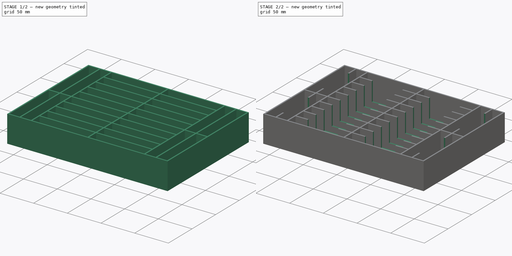
[diagram: build sequence overview — one tinted view per stage of 2, left to right]
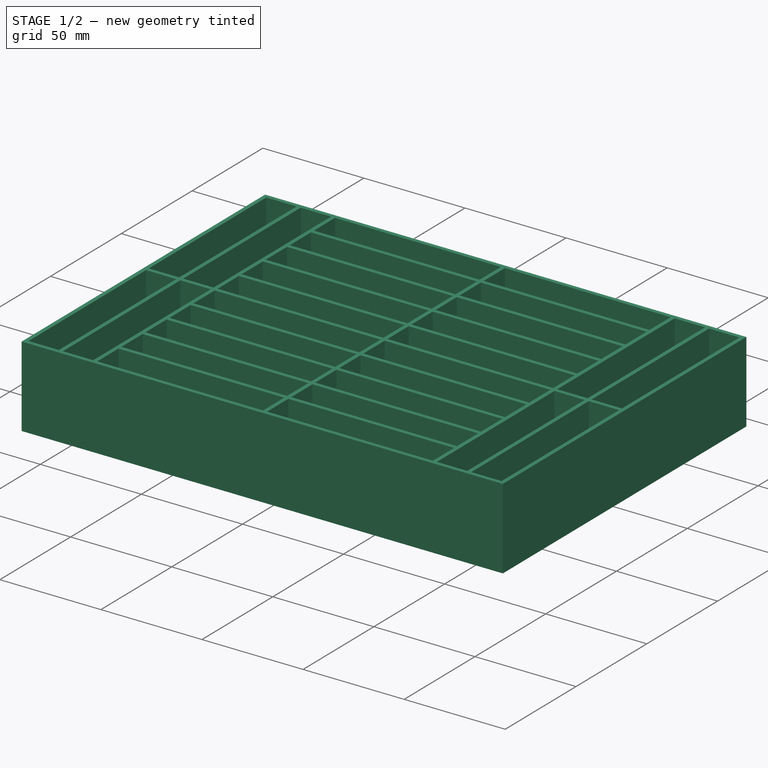
[diagram: stage 1 of 2 — iso view after this stage's code; geometry added in this stage tinted green]
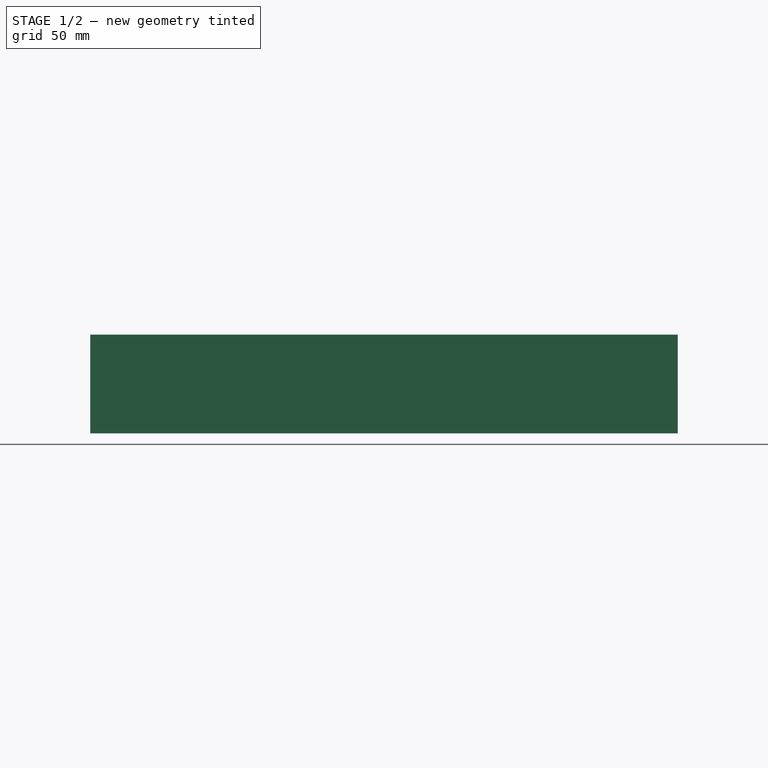
[diagram: stage 1 of 2 — front view after this stage's code; geometry added in this stage tinted green]
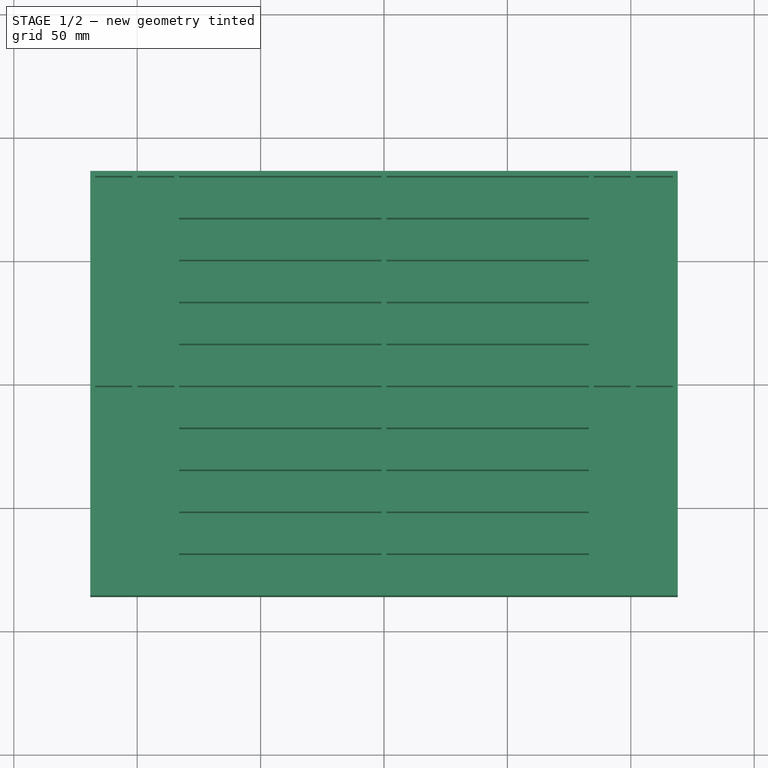
[diagram: stage 1 of 2 — top view after this stage's code; geometry added in this stage tinted green]
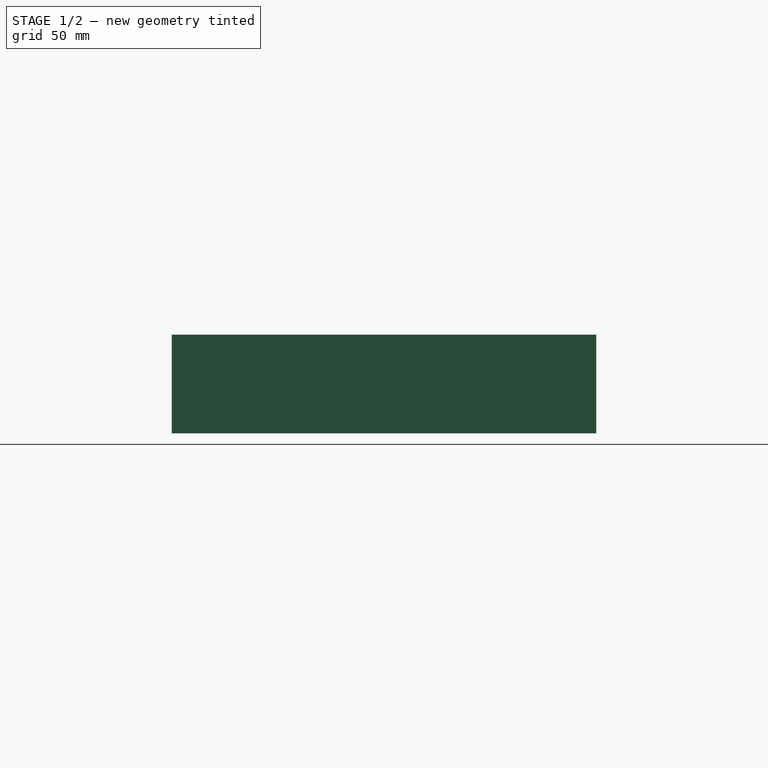
[diagram: stage 1 of 2 — right view after this stage's code; geometry added in this stage tinted green]
FCSTD DOCUMENT  (FreeCAD 1.0R)
Label: Nouveau
License: All rights reserved
LicenseURL: http://en.wikipedia.org/wiki/All_rights_reserved
objects: Sketcher::SketchObject×5, PartDesign::Pocket×3, PartDesign::Pad×1, PartDesign::Body×1
note: 23 computed .brp shape members not serialized (recipe doc carries the construction recipe); baked Part::Feature solids carry a one-line shape summary decoded from their .brp

FEATURE [Sketcher::SketchObject] Sketch
  ArcFitTolerance = 1e-06
  AttachmentSupport = -> [XY_Plane]
  FullyConstrained = true
  MakeInternals = false
  MapMode = 5
  sketch-geometry (4):
    g0: LineSegment StartX=-119 StartY=86 StartZ=0 EndX=-119 EndY=-86 EndZ=0
    g1: LineSegment StartX=-119 StartY=-86 StartZ=0 EndX=119 EndY=-86 EndZ=0
    g2: LineSegment StartX=119 StartY=-86 StartZ=0 EndX=119 EndY=86 EndZ=0
    g3: LineSegment StartX=119 StartY=86 StartZ=0 EndX=-119 EndY=86 EndZ=0
  constraints (11):
    c: Coincident(g0,g1)
    c: Coincident(g1,g2)
    c: Coincident(g2,g3)
    c: Coincident(g3,g0)
    c: Vertical(g0)
    c: Vertical(g2)
    c: Horizontal(g1)
    c: Horizontal(g3)
    c: Symmetric(g0,g1,g-1)
    c: DistanceX(g3,g3) = 238
    c: DistanceY(g0,g0) = 172
FEATURE [PartDesign::Pad] Pad
  Direction = (0,0,1)
  Length = 40
  Length2 = 10
  Profile = -> Sketch
  ReferenceAxis = -> Sketch [N_Axis]
  Suppressed = false
  Type = 0
FEATURE [Sketcher::SketchObject] Sketch001
  ArcFitTolerance = 1e-06
  AttachmentSupport = -> [Pad]
  FullyConstrained = true
  MakeInternals = false
  MapMode = 5
  Placement = pos=(0,0,40) rot=(0,0,1;0rad)
  sketch-geometry (112):
    g0: LineSegment StartX=-1 StartY=1 StartZ=0 EndX=-1 EndY=16 EndZ=0
    g1: LineSegment StartX=-1 StartY=16 StartZ=0 EndX=-83 EndY=16 EndZ=0
    g2: LineSegment StartX=-83 StartY=16 StartZ=0 EndX=-83 EndY=1 EndZ=0
    g3: LineSegment StartX=-83 StartY=1 StartZ=0 EndX=-1 EndY=1 EndZ=0
    g4: LineSegment StartX=1 StartY=1 StartZ=0 EndX=83 EndY=1 EndZ=0
    g5: LineSegment StartX=83 StartY=1 StartZ=0 EndX=83 EndY=16 EndZ=0
    g6: LineSegment StartX=83 StartY=16 StartZ=0 EndX=1 EndY=16 EndZ=0
    g7: LineSegment StartX=1 StartY=16 StartZ=0 EndX=1 EndY=1 EndZ=0
    g8: LineSegment StartX=1 StartY=-1 StartZ=0 EndX=1 EndY=-16 EndZ=0
    g9: LineSegment StartX=1 StartY=-16 StartZ=0 EndX=83 EndY=-16 EndZ=0
    g10: LineSegment StartX=83 StartY=-16 StartZ=0 EndX=83 EndY=-1 EndZ=0
    g11: LineSegment StartX=83 StartY=-1 StartZ=0 EndX=1 EndY=-1 EndZ=0
    g12: LineSegment StartX=-1 StartY=-1 StartZ=0 EndX=-83 EndY=-1 EndZ=0
    g13: LineSegment StartX=-83 StartY=-1 StartZ=0 EndX=-83 EndY=-16 EndZ=0
    g14: LineSegment StartX=-83 StartY=-16 StartZ=0 EndX=-1 EndY=-16 EndZ=0
    g15: LineSegment StartX=-1 StartY=-16 StartZ=0 EndX=-1 EndY=-1 EndZ=0
    g16: LineSegment StartX=1 StartY=18 StartZ=0 EndX=83 EndY=18 EndZ=0
    g17: LineSegment StartX=83 StartY=18 StartZ=0 EndX=83 EndY=33 EndZ=0
    g18: LineSegment StartX=83 StartY=33 StartZ=0 EndX=1 EndY=33 EndZ=0
    g19: LineSegment StartX=1 StartY=33 StartZ=0 EndX=1 EndY=18 EndZ=0
    g20: LineSegment StartX=-1 StartY=18 StartZ=0 EndX=-1 EndY=33 EndZ=0
    g21: LineSegment StartX=-1 StartY=33 StartZ=0 EndX=-83 EndY=33 EndZ=0
    g22: LineSegment StartX=-83 StartY=33 StartZ=0 EndX=-83 EndY=18 EndZ=0
    g23: LineSegment StartX=-83 StartY=18 StartZ=0 EndX=-1 EndY=18 EndZ=0
    g24: LineSegment StartX=1 StartY=-18 StartZ=0 EndX=1 EndY=-33 EndZ=0
    g25: LineSegment StartX=1 StartY=-33 StartZ=0 EndX=83 EndY=-33 EndZ=0
    g26: LineSegment StartX=83 StartY=-33 StartZ=0 EndX=83 EndY=-18 EndZ=0
    g27: LineSegment StartX=83 StartY=-18 StartZ=0 EndX=1 EndY=-18 EndZ=0
    g28: LineSegment StartX=1 StartY=-35 StartZ=0 EndX=1 EndY=-50 EndZ=0
    g29: LineSegment StartX=1 StartY=-50 StartZ=0 EndX=83 EndY=-50 EndZ=0
    g30: LineSegment StartX=83 StartY=-50 StartZ=0 EndX=83 EndY=-35 EndZ=0
    g31: LineSegment StartX=83 StartY=-35 StartZ=0 EndX=1 EndY=-35 EndZ=0
    g32: LineSegment StartX=1 StartY=-52 StartZ=0 EndX=1 EndY=-67 EndZ=0
    g33: LineSegment StartX=1 StartY=-67 StartZ=0 EndX=83 EndY=-67 EndZ=0
    g34: LineSegment StartX=83 StartY=-67 StartZ=0 EndX=83 EndY=-52 EndZ=0
    g35: LineSegment StartX=83 StartY=-52 StartZ=0 EndX=1 EndY=-52 EndZ=0
    g36: LineSegment StartX=-1 StartY=-18 StartZ=0 EndX=-83 EndY=-18 EndZ=0
    g37: LineSegment StartX=-83 StartY=-18 StartZ=0 EndX=-83 EndY=-33 EndZ=0
    g38: LineSegment StartX=-83 StartY=-33 StartZ=0 EndX=-1 EndY=-33 EndZ=0
    g39: LineSegment StartX=-1 StartY=-33 StartZ=0 EndX=-1 EndY=-18 EndZ=0
    g40: LineSegment StartX=-1 StartY=-35 StartZ=0 EndX=-83 EndY=-35 EndZ=0
    g41: LineSegment StartX=-83 StartY=-35 StartZ=0 EndX=-83 EndY=-50 EndZ=0
    g42: LineSegment StartX=-83 StartY=-50 StartZ=0 EndX=-1 EndY=-50 EndZ=0
    g43: LineSegment StartX=-1 StartY=-50 StartZ=0 EndX=-1 EndY=-35 EndZ=0
    g44: LineSegment StartX=-1 StartY=-52 StartZ=0 EndX=-83 EndY=-52 EndZ=0
    g45: LineSegment StartX=-83 StartY=-52 StartZ=0 EndX=-83 EndY=-67 EndZ=0
    g46: LineSegment StartX=-83 StartY=-67 StartZ=0 EndX=-1 EndY=-67 EndZ=0
    g47: LineSegment StartX=-1 StartY=-67 StartZ=0 EndX=-1 EndY=-52 EndZ=0
    g48: LineSegment StartX=1 StartY=35 StartZ=0 EndX=83 EndY=35 EndZ=0
    g49: LineSegment StartX=83 StartY=35 StartZ=0 EndX=83 EndY=50 EndZ=0
    g50: LineSegment StartX=83 StartY=50 StartZ=0 EndX=1 EndY=50 EndZ=0
    g51: LineSegment StartX=1 StartY=50 StartZ=0 EndX=1 EndY=35 EndZ=0
    g52: LineSegment StartX=-1 StartY=35 StartZ=0 EndX=-1 EndY=50 EndZ=0
    g53: LineSegment StartX=-1 StartY=50 StartZ=0 EndX=-83 EndY=50 EndZ=0
    g54: LineSegment StartX=-83 StartY=50 StartZ=0 EndX=-83 EndY=35 EndZ=0
    g55: LineSegment StartX=-83 StartY=35 StartZ=0 EndX=-1 EndY=35 EndZ=0
    g56: LineSegment StartX=1 StartY=52 StartZ=0 EndX=83 EndY=52 EndZ=0
    g57: LineSegment StartX=83 StartY=52 StartZ=0 EndX=83 EndY=67 EndZ=0
    g58: LineSegment StartX=83 StartY=67 StartZ=0 EndX=1 EndY=67 EndZ=0
    g59: LineSegment StartX=1 StartY=67 StartZ=0 EndX=1 EndY=52 EndZ=0
    g60: LineSegment StartX=-1 StartY=52 StartZ=0 EndX=-1 EndY=67 EndZ=0
    g61: LineSegment StartX=-1 StartY=67 StartZ=0 EndX=-83 EndY=67 EndZ=0
    g62: LineSegment StartX=-83 StartY=67 StartZ=0 EndX=-83 EndY=52 EndZ=0
    g63: LineSegment StartX=-83 StartY=52 StartZ=0 EndX=-1 EndY=52 EndZ=0
    g64: LineSegment StartX=85 StartY=-1 StartZ=0 EndX=85 EndY=-84 EndZ=0
    g65: LineSegment StartX=85 StartY=-84 StartZ=0 EndX=100 EndY=-84 EndZ=0
    g66: LineSegment StartX=100 StartY=-84 StartZ=0 EndX=100 EndY=-1 EndZ=0
    g67: LineSegment StartX=100 StartY=-1 StartZ=0 EndX=85 EndY=-1 EndZ=0
    g68: LineSegment StartX=1 StartY=-69 StartZ=0 EndX=1 EndY=-84 EndZ=0
    g69: LineSegment StartX=1 StartY=-84 StartZ=0 EndX=83 EndY=-84 EndZ=0
    g70: LineSegment StartX=83 StartY=-84 StartZ=0 EndX=83 EndY=-69 EndZ=0
    g71: LineSegment StartX=83 StartY=-69 StartZ=0 EndX=1 EndY=-69 EndZ=0
    g72: LineSegment StartX=-83 StartY=-69 StartZ=0 EndX=-83 EndY=-84 EndZ=0
    g73: LineSegment StartX=-83 StartY=-84 StartZ=0 EndX=-1 EndY=-84 EndZ=0
    g74: LineSegment StartX=-1 StartY=-84 StartZ=0 EndX=-1 EndY=-69 EndZ=0
    g75: LineSegment StartX=-1 StartY=-69 StartZ=0 EndX=-83 EndY=-69 EndZ=0
    g76: LineSegment StartX=1 StartY=69 StartZ=0 EndX=83 EndY=69 EndZ=0
    g77: LineSegment StartX=83 StartY=69 StartZ=0 EndX=83 EndY=84 EndZ=0
    g78: LineSegment StartX=83 StartY=84 StartZ=0 EndX=1 EndY=84 EndZ=0
    g79: LineSegment StartX=1 StartY=84 StartZ=0 EndX=1 EndY=69 EndZ=0
    g80: LineSegment StartX=-1 StartY=69 StartZ=0 EndX=-1 EndY=84 EndZ=0
    g81: LineSegment StartX=-1 StartY=84 StartZ=0 EndX=-83 EndY=84 EndZ=0
    g82: LineSegment StartX=-83 StartY=84 StartZ=0 EndX=-83 EndY=69 EndZ=0
    g83: LineSegment StartX=-83 StartY=69 StartZ=0 EndX=-1 EndY=69 EndZ=0
    g84: LineSegment StartX=100 StartY=1 StartZ=0 EndX=100 EndY=84 EndZ=0
    g85: LineSegment StartX=100 StartY=84 StartZ=0 EndX=85 EndY=84 EndZ=0
    g86: LineSegment StartX=85 StartY=84 StartZ=0 EndX=85 EndY=1 EndZ=0
    g87: LineSegment StartX=85 StartY=1 StartZ=0 EndX=100 EndY=1 EndZ=0
    g88: LineSegment StartX=-85 StartY=1 StartZ=0 EndX=-85 EndY=84 EndZ=0
    g89: LineSegment StartX=-85 StartY=84 StartZ=0 EndX=-100 EndY=84 EndZ=0
    g90: LineSegment StartX=-100 StartY=84 StartZ=0 EndX=-100 EndY=1 EndZ=0
    g91: LineSegment StartX=-100 StartY=1 StartZ=0 EndX=-85 EndY=1 EndZ=0
    g92: LineSegment StartX=-100 StartY=-84 StartZ=0 EndX=-85 EndY=-84 EndZ=0
    g93: LineSegment StartX=-85 StartY=-84 StartZ=0 EndX=-85 EndY=-1 EndZ=0
    g94: LineSegment StartX=-85 StartY=-1 StartZ=0 EndX=-100 EndY=-1 EndZ=0
    g95: LineSegment StartX=-100 StartY=-1 StartZ=0 EndX=-100 EndY=-84 EndZ=0
    g96: LineSegment StartX=102 StartY=84 StartZ=0 EndX=102 EndY=1 EndZ=0
    g97: LineSegment StartX=102 StartY=1 StartZ=0 EndX=117 EndY=1 EndZ=0
    g98: LineSegment StartX=117 StartY=1 StartZ=0 EndX=117 EndY=84 EndZ=0
    g99: LineSegment StartX=117 StartY=84 StartZ=0 EndX=102 EndY=84 EndZ=0
    g100: LineSegment StartX=102 StartY=-1 StartZ=0 EndX=102 EndY=-84 EndZ=0
    g101: LineSegment StartX=102 StartY=-84 StartZ=0 EndX=117 EndY=-84 EndZ=0
    g102: LineSegment StartX=117 StartY=-84 StartZ=0 EndX=117 EndY=-1 EndZ=0
    g103: LineSegment StartX=117 StartY=-1 StartZ=0 EndX=102 EndY=-1 EndZ=0
    g104: LineSegment StartX=-102 StartY=84 StartZ=0 EndX=-117 EndY=84 EndZ=0
    g105: LineSegment StartX=-117 StartY=84 StartZ=0 EndX=-117 EndY=1 EndZ=0
    g106: LineSegment StartX=-117 StartY=1 StartZ=0 EndX=-102 EndY=1 EndZ=0
    g107: LineSegment StartX=-102 StartY=1 StartZ=0 EndX=-102 EndY=84 EndZ=0
    g108: LineSegment StartX=-117 StartY=-1 StartZ=0 EndX=-117 EndY=-84 EndZ=0
    g109: LineSegment StartX=-117 StartY=-84 StartZ=0 EndX=-102 EndY=-84 EndZ=0
    g110: LineSegment StartX=-102 StartY=-84 StartZ=0 EndX=-102 EndY=-1 EndZ=0
    g111: LineSegment StartX=-102 StartY=-1 StartZ=0 EndX=-117 EndY=-1 EndZ=0
  constraints (331):
    c: Coincident(g0,g1)
    c: Coincident(g1,g2)
    c: Coincident(g2,g3)
    c: Coincident(g3,g0)
    c: Vertical(g0)
    c: Vertical(g2)
    c: Horizontal(g1)
    c: Horizontal(g3)
    c: DistanceX(g0,g-1) = 1
    c: DistanceY(g-1,g0) = 1
    c: DistanceY(g0,g0) = 15
    c: DistanceX(g1,g1) = 82
    c: Coincident(g4,g5)
    c: Coincident(g5,g6)
    c: Coincident(g6,g7)
    c: Coincident(g7,g4)
    c: Horizontal(g4)
    c: Horizontal(g6)
    c: Vertical(g5)
    c: Vertical(g7)
    c: Symmetric(g4,g0,g-2)
    c: DistanceY(g7,g7) = 15
    c: DistanceX(g6,g6) = 82
    c: Coincident(g8,g9)
    c: Coincident(g9,g10)
    c: Coincident(g10,g11)
    c: Coincident(g11,g8)
    c: Vertical(g8)
    c: Vertical(g10)
    c: Horizontal(g9)
    c: Horizontal(g11)
    c: Coincident(g12,g13)
    c: Coincident(g13,g14)
    c: Coincident(g14,g15)
    c: Coincident(g15,g12)
    c: Horizontal(g12)
    c: Horizontal(g14)
    c: Vertical(g13)
    c: Vertical(g15)
    c: Symmetric(g8,g0,g-1)
    c: Symmetric(g12,g4,g-1)
    c: DistanceY(g8,g8) = 15
    c: DistanceY(g15,g15) = 15
    c: DistanceX(g14,g14) = 82
    c: DistanceX(g9,g9) = 82
    c: Coincident(g16,g17)
    c: Coincident(g17,g18)
    c: Coincident(g18,g19)
    c: Coincident(g19,g16)
    c: Horizontal(g16)
    c: Horizontal(g18)
    c: Vertical(g17)
    c: Vertical(g19)
    c: Coincident(g20,g21)
    c: Coincident(g21,g22)
    c: Coincident(g22,g23)
    c: Coincident(g23,g20)
    c: Vertical(g20)
    c: Vertical(g22)
    c: Horizontal(g21)
    c: Horizontal(g23)
    c: Vertical(g16,g6)
    c: Vertical(g20,g0)
    c: Horizontal(g18,g20)
    c: Vertical(g16,g5)
    c: Vertical(g22,g1)
    c: DistanceY(g19,g19) = 15
    c: Equal(g19,g20)
    c: DistanceY(g0,g20) = 2
    c: Coincident(g24,g25)
    c: Coincident(g25,g26)
    c: Coincident(g26,g27)
    c: Coincident(g27,g24)
    c: Vertical(g24)
    c: Vertical(g26)
    c: Horizontal(g25)
    c: Horizontal(g27)
    c: Coincident(g28,g29)
    c: Coincident(g29,g30)
    c: Coincident(g30,g31)
    c: Coincident(g31,g28)
    c: Vertical(g28)
    c: Vertical(g30)
    c: Horizontal(g29)
    c: Horizontal(g31)
    c: Coincident(g32,g33)
    c: Coincident(g33,g34)
    c: Coincident(g34,g35)
    c: Coincident(g35,g32)
    c: Vertical(g32)
    c: Vertical(g34)
    c: Horizontal(g33)
    c: Horizontal(g35)
    c: Coincident(g36,g37)
    c: Coincident(g37,g38)
    c: Coincident(g38,g39)
    c: Coincident(g39,g36)
    c: Horizontal(g36)
    c: Horizontal(g38)
    c: Vertical(g37)
    c: Vertical(g39)
    c: Coincident(g40,g41)
    c: Coincident(g41,g42)
    c: Coincident(g42,g43)
    c: Coincident(g43,g40)
    c: Horizontal(g40)
    c: Horizontal(g42)
    c: Vertical(g41)
    c: Vertical(g43)
    c: Coincident(g44,g45)
    c: Coincident(g45,g46)
    c: Coincident(g46,g47)
    c: Coincident(g47,g44)
    c: Horizontal(g44)
    c: Horizontal(g46)
    c: Vertical(g45)
    c: Vertical(g47)
    c: Equal(g39,g24)
    c: Equal(g24,g28)
    c: Equal(g28,g43)
    c: Equal(g43,g47)
    c: Equal(g47,g32)
    c: Equal(g27,g36)
    c: Equal(g36,g40)
    c: Equal(g40,g31)
    c: Equal(g31,g35)
    c: Equal(g35,g44)
    c: Symmetric(g24,g36,g-2)
    c: Symmetric(g28,g40,g-2)
    c: Vertical(g36,g14)
    c: Vertical(g28,g24)
    c: Vertical(g44,g42)
    c: Horizontal(g44,g32)
    c: Vertical(g32,g28)
    c: DistanceY(g32,g28) = 2
    c: DistanceY(g28,g24) = 2
    c: DistanceY(g24,g24) = 15
    c: DistanceY(g24,g8) = 2
    c: Vertical(g26,g9)
    c: Coincident(g48,g49)
    c: Coincident(g49,g50)
    c: Coincident(g50,g51)
    c: Coincident(g51,g48)
    c: Horizontal(g48)
    c: Horizontal(g50)
    c: Vertical(g49)
    c: Vertical(g51)
    c: Coincident(g52,g53)
    c: Coincident(g53,g54)
    c: Coincident(g54,g55)
    c: Coincident(g55,g52)
    c: Vertical(g52)
    c: Vertical(g54)
    c: Horizontal(g53)
    c: Horizontal(g55)
    c: Coincident(g56,g57)
    c: Coincident(g57,g58)
    c: Coincident(g58,g59)
    c: Coincident(g59,g56)
    c: Horizontal(g56)
    c: Horizontal(g58)
    c: Vertical(g57)
    c: Vertical(g59)
    c: Coincident(g60,g61)
    c: Coincident(g61,g62)
    c: Coincident(g62,g63)
    c: Coincident(g63,g60)
    c: Vertical(g60)
    c: Vertical(g62)
    c: Horizontal(g61)
    c: Horizontal(g63)
    c: Vertical(g60,g52)
    c: Vertical(g56,g50)
    c: Horizontal(g56,g60)
    c: DistanceY(g60,g60) = 15
    c: Equal(g60,g59)
    c: Equal(g59,g51)
    c: Equal(g51,g52)
    c: Equal(g56,g50)
    c: Equal(g50,g53)
    c: Equal(g53,g63)
    c: Vertical(g48,g18)
    c: Vertical(g52,g20)
    c: Horizontal(g50,g52)
    c: Vertical(g48,g17)
    c: DistanceY(g20,g52) = 2
    c: DistanceY(g52,g60) = 2
    c: Coincident(g64,g65)
    c: Coincident(g65,g66)
    c: Coincident(g66,g67)
    c: Coincident(g67,g64)
    c: Vertical(g64)
    c: Vertical(g66)
    c: Horizontal(g65)
    c: Horizontal(g67)
    c: DistanceX(g67,g67) = 15
    c: Coincident(g68,g69)
    c: Coincident(g69,g70)
    c: Coincident(g70,g71)
    c: Coincident(g71,g68)
    c: Vertical(g68)
    c: Vertical(g70)
    c: Horizontal(g69)
    c: Horizontal(g71)
    c: Coincident(g72,g73)
    c: Coincident(g73,g74)
    c: Coincident(g74,g75)
    c: Coincident(g75,g72)
    c: Vertical(g72)
    c: Vertical(g74)
    c: Horizontal(g73)
    c: Horizontal(g75)
    c: Coincident(g76,g77)
    c: Coincident(g77,g78)
    c: Coincident(g78,g79)
    c: Coincident(g79,g76)
    c: Horizontal(g76)
    c: Horizontal(g78)
    c: Vertical(g77)
    c: Vertical(g79)
    c: Coincident(g80,g81)
    c: Coincident(g81,g82)
    c: Coincident(g82,g83)
    c: Coincident(g83,g80)
    c: Vertical(g80)
    c: Vertical(g82)
    c: Horizontal(g81)
    c: Horizontal(g83)
    c: Vertical(g76,g58)
    c: Vertical(g80,g60)
    c: Horizontal(g76,g80)
    c: Equal(g80,g79)
    c: Equal(g79,g59)
    c: Equal(g58,g76)
    c: Equal(g76,g83)
    c: DistanceY(g60,g80) = 2
    c: Horizontal(g68,g74)
    c: Vertical(g74,g46)
    c: Vertical(g32,g68)
    c: Equal(g74,g68)
    c: Equal(g68,g32)
    c: Equal(g33,g71)
    c: Equal(g71,g75)
    c: DistanceY(g74,g46) = 2
    c: Horizontal(g64,g10)
    c: DistanceX(g10,g64) = 2
    c: Horizontal(g64,g69)
    c: Coincident(g84,g85)
    c: Coincident(g85,g86)
    c: Coincident(g86,g87)
    c: Coincident(g87,g84)
    c: Vertical(g84)
    c: Vertical(g86)
    c: Horizontal(g85)
    c: Horizontal(g87)
    c: Coincident(g88,g89)
    c: Coincident(g89,g90)
    c: Coincident(g90,g91)
    c: Coincident(g91,g88)
    c: Vertical(g88)
    c: Vertical(g90)
    c: Horizontal(g89)
    c: Horizontal(g91)
    c: Coincident(g92,g93)
    c: Coincident(g93,g94)
    c: Coincident(g94,g95)
    c: Coincident(g95,g92)
    c: Horizontal(g92)
    c: Horizontal(g94)
    c: Vertical(g93)
    c: Vertical(g95)
    c: Horizontal(g86,g4)
    c: Vertical(g86,g64)
    c: Horizontal(g85,g77)
    c: Vertical(g84,g66)
    c: Horizontal(g2,g88)
    c: Vertical(g93,g88)
    c: Horizontal(g93,g12)
    c: DistanceX(g88,g2) = 2
    c: Equal(g94,g91)
    c: Equal(g91,g2)
    c: Horizontal(g81,g88)
    c: Horizontal(g92,g72)
    c: Coincident(g96,g97)
    c: Coincident(g97,g98)
    c: Coincident(g98,g99)
    c: Coincident(g99,g96)
    c: Vertical(g96)
    c: Vertical(g98)
    c: Horizontal(g97)
    c: Horizontal(g99)
    c: Coincident(g100,g101)
    c: Coincident(g101,g102)
    c: Coincident(g102,g103)
    c: Coincident(g103,g100)
    c: Vertical(g100)
    c: Vertical(g102)
    c: Horizontal(g101)
    c: Horizontal(g103)
    c: Coincident(g104,g105)
    c: Coincident(g105,g106)
    c: Coincident(g106,g107)
    c: Coincident(g107,g104)
    c: Horizontal(g104)
    c: Horizontal(g106)
    c: Vertical(g105)
    c: Vertical(g107)
    c: Coincident(g108,g109)
    c: Coincident(g109,g110)
    c: Coincident(g110,g111)
    c: Coincident(g111,g108)
    c: Vertical(g108)
    c: Vertical(g110)
    c: Horizontal(g109)
    c: Horizontal(g111)
    c: Horizontal(g96,g84)
    c: Horizontal(g100,g66)
    c: Vertical(g100,g96)
    c: Equal(g97,g103)
    c: DistanceX(g84,g96) = 2
    c: Horizontal(g96,g84)
    c: Horizontal(g100,g65)
    c: Horizontal(g109,g92)
    c: Equal(g111,g91)
    c: Equal(g91,g106)
    c: Horizontal(g110,g94)
    c: Vertical(g110,g106)
    c: Horizontal(g106,g90)
    c: DistanceX(g106,g90) = 2
    c: Horizontal(g104,g89)
    c: Equal(g97,g87)
FEATURE [PartDesign::Pocket] Pocket
  BaseFeature = -> Pad
  Direction = (0,0,-1)
  Length = 0
  Length2 = 5
  Offset = -2
  Profile = -> Sketch001
  ReferenceAxis = -> Sketch001 [N_Axis]
  Suppressed = false
  Type = 3
  UpToFace = -> Pad [Face5]
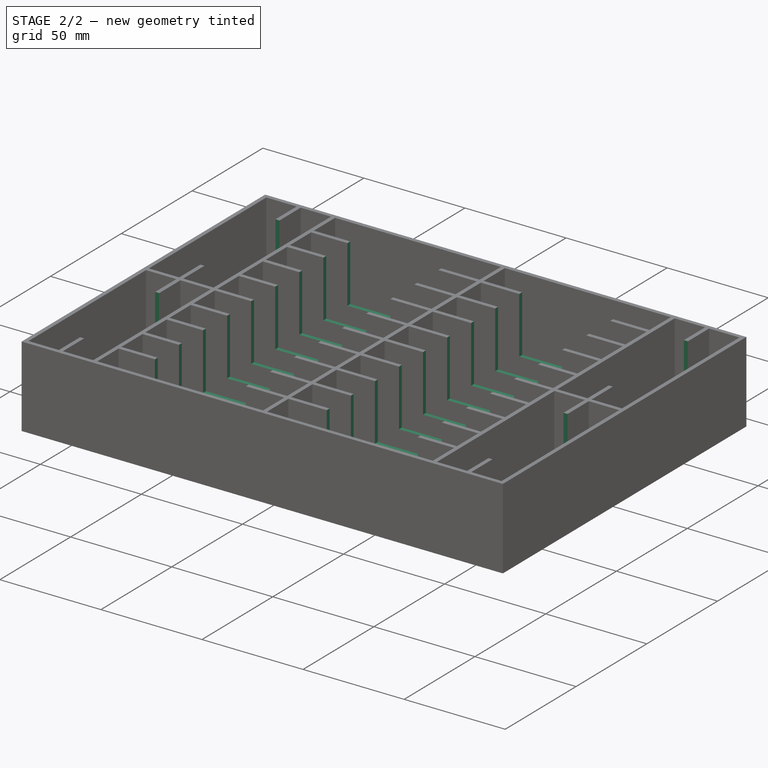
[diagram: stage 2 of 2 — iso view after this stage's code; geometry added in this stage tinted green]
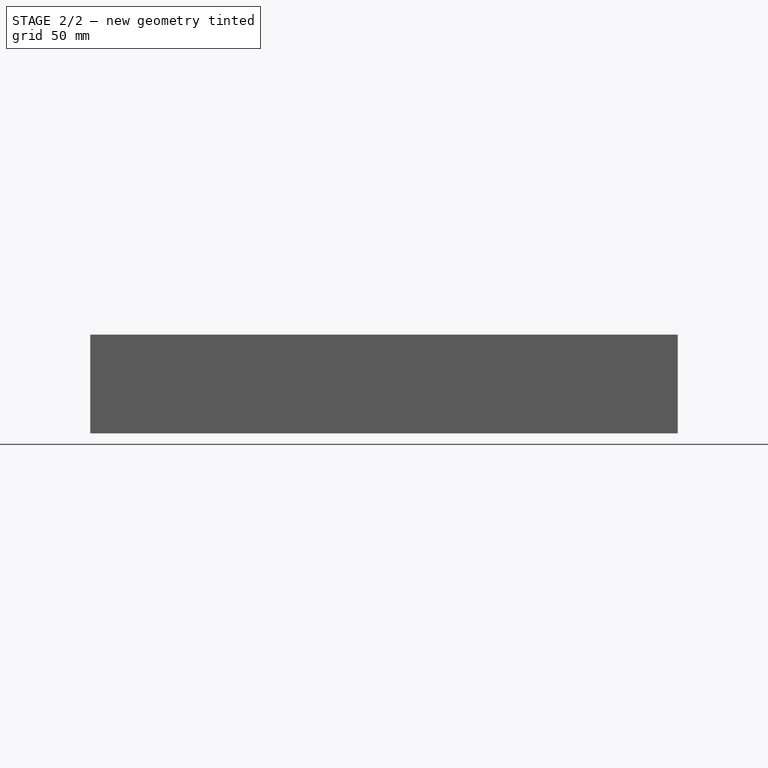
[diagram: stage 2 of 2 — front view after this stage's code; geometry added in this stage tinted green]
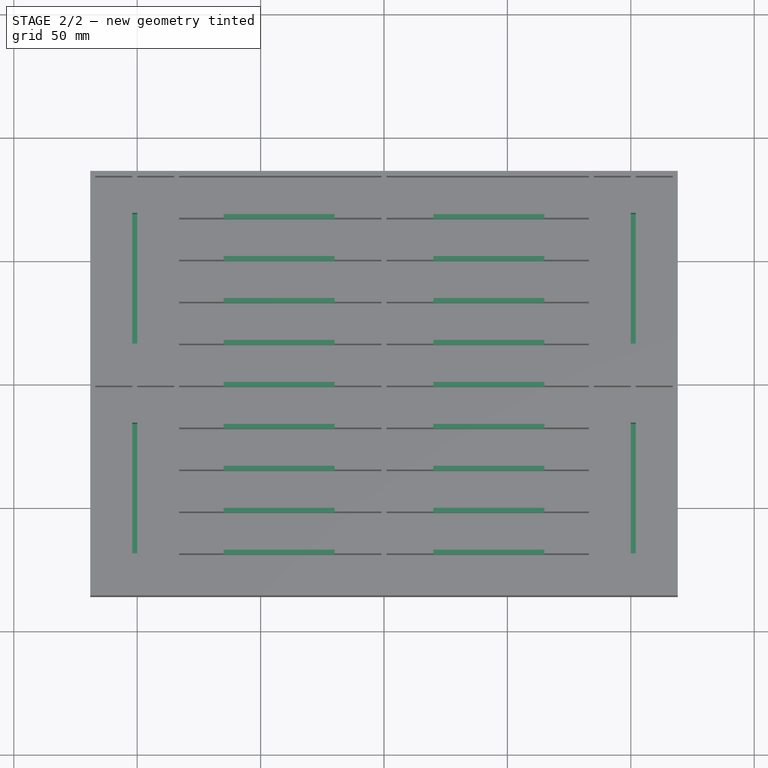
[diagram: stage 2 of 2 — top view after this stage's code; geometry added in this stage tinted green]
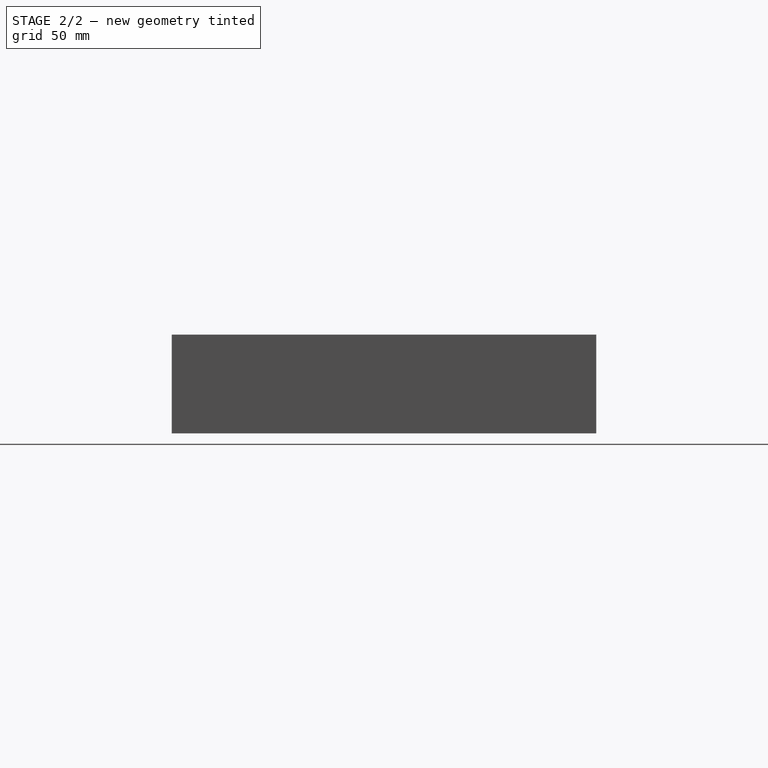
[diagram: stage 2 of 2 — right view after this stage's code; geometry added in this stage tinted green]
FEATURE [Sketcher::SketchObject] Sketch002
  ArcFitTolerance = 1e-06
  AttachmentSupport = -> [Pocket]
  ExternalGeometry = -> [Pocket]
  FullyConstrained = true
  MakeInternals = false
  MapMode = 5
  Placement = pos=(0,0,40) rot=(0,0,1;0rad)
  sketch-geometry (11):
    g0: LineSegment StartX=-65 StartY=75 StartZ=0 EndX=-65 EndY=-75 EndZ=0
    g1: LineSegment StartX=-65 StartY=-75 StartZ=0 EndX=-20 EndY=-75 EndZ=0
    g2: LineSegment StartX=-20 StartY=-75 StartZ=0 EndX=-20 EndY=75 EndZ=0
    g3: LineSegment StartX=-20 StartY=75 StartZ=0 EndX=-65 EndY=75 EndZ=0
    g4: LineSegment StartX=20 StartY=-75 StartZ=0 EndX=65 EndY=-75 EndZ=0
    g5: LineSegment StartX=65 StartY=-75 StartZ=0 EndX=65 EndY=75 EndZ=0
    g6: LineSegment StartX=65 StartY=75 StartZ=0 EndX=20 EndY=75 EndZ=0
    g7: LineSegment StartX=20 StartY=75 StartZ=0 EndX=20 EndY=-75 EndZ=0
    g8: LineSegment [constr] StartX=1 StartY=1 StartZ=0 EndX=83 EndY=-1 EndZ=0
    g9: LineSegment [constr] StartX=83 StartY=1 StartZ=0 EndX=1 EndY=-1 EndZ=0
    g10: GeomPoint [constr] X=42 Y=3.9e-15 Z=0
  constraints (29):
    c: Coincident(g0,g1)
    c: Coincident(g1,g2)
    c: Coincident(g2,g3)
    c: Coincident(g3,g0)
    c: Vertical(g0)
    c: Vertical(g2)
    c: Horizontal(g1)
    c: Horizontal(g3)
    c: Coincident(g4,g5)
    c: Coincident(g5,g6)
    c: Coincident(g6,g7)
    c: Coincident(g7,g4)
    c: Horizontal(g4)
    c: Horizontal(g6)
    c: Vertical(g5)
    c: Vertical(g7)
    c: DistanceX(g3,g3) = 45
    c: Horizontal(g6,g2)
    c: Horizontal(g4,g1)
    c: Symmetric(g4,g2,g-1)
    c: Equal(g3,g6)
    c: Coincident(g8,g-5)
    c: Coincident(g8,g-6)
    c: Coincident(g9,g-5)
    c: Coincident(g9,g-6)
    c: PointOnObject(g10,g8)
    c: PointOnObject(g10,g9)
    c: DistanceX(g1,g4) = 40
    c: DistanceY(g0,g0) = 150
FEATURE [PartDesign::Pocket] Pocket001
  BaseFeature = -> Pocket
  Direction = (0,0,-1)
  Length = 0
  Length2 = 5
  Offset = 10
  Profile = -> Sketch002
  ReferenceAxis = -> Sketch002 [N_Axis]
  Suppressed = false
  Type = 3
  UpToFace = -> Pocket [Face138]
FEATURE [Sketcher::SketchObject] Sketch003
  ArcFitTolerance = 1e-06
  AttachmentSupport = -> [Pocket001]
  ExternalGeometry = -> [Pocket001]
  FullyConstrained = true
  MakeInternals = false
  MapMode = 5
  Placement = pos=(119,0,0) rot=(0.57735,0.57735,0.57735;2.0944rad)
FEATURE [Sketcher::SketchObject] Sketch004
  ArcFitTolerance = 1e-06
  AttachmentSupport = -> [Pocket001]
  ExternalGeometry = -> [Pocket001]
  FullyConstrained = true
  MakeInternals = false
  MapMode = 5
  Placement = pos=(0,0,40) rot=(0,0,1;0rad)
  sketch-geometry (16):
    g0: LineSegment StartX=93 StartY=69 StartZ=0 EndX=93 EndY=16 EndZ=0
    g1: LineSegment StartX=93 StartY=16 StartZ=0 EndX=113 EndY=16 EndZ=0
    g2: LineSegment StartX=113 StartY=16 StartZ=0 EndX=113 EndY=69 EndZ=0
    g3: LineSegment StartX=113 StartY=69 StartZ=0 EndX=93 EndY=69 EndZ=0
    g4: LineSegment StartX=93 StartY=-16 StartZ=0 EndX=93 EndY=-69 EndZ=0
    g5: LineSegment StartX=93 StartY=-69 StartZ=0 EndX=113 EndY=-69 EndZ=0
    g6: LineSegment StartX=113 StartY=-69 StartZ=0 EndX=113 EndY=-16 EndZ=0
    g7: LineSegment StartX=113 StartY=-16 StartZ=0 EndX=93 EndY=-16 EndZ=0
    g8: LineSegment StartX=-93 StartY=-16 StartZ=0 EndX=-113 EndY=-16 EndZ=0
    g9: LineSegment StartX=-113 StartY=-16 StartZ=0 EndX=-113 EndY=-69 EndZ=0
    g10: LineSegment StartX=-113 StartY=-69 StartZ=0 EndX=-93 EndY=-69 EndZ=0
    g11: LineSegment StartX=-93 StartY=-69 StartZ=0 EndX=-93 EndY=-16 EndZ=0
    g12: LineSegment StartX=-113 StartY=69 StartZ=0 EndX=-113 EndY=16 EndZ=0
    g13: LineSegment StartX=-113 StartY=16 StartZ=0 EndX=-93 EndY=16 EndZ=0
    g14: LineSegment StartX=-93 StartY=16 StartZ=0 EndX=-93 EndY=69 EndZ=0
    g15: LineSegment StartX=-93 StartY=69 StartZ=0 EndX=-113 EndY=69 EndZ=0
  constraints (48):
    c: Coincident(g0,g1)
    c: Coincident(g1,g2)
    c: Coincident(g2,g3)
    c: Coincident(g3,g0)
    c: Vertical(g0)
    c: Vertical(g2)
    c: Horizontal(g1)
    c: Horizontal(g3)
    c: Horizontal(g0,g-3)
    c: Horizontal(g0,g-8)
    c: Coincident(g4,g5)
    c: Coincident(g5,g6)
    c: Coincident(g6,g7)
    c: Coincident(g7,g4)
    c: Vertical(g4)
    c: Vertical(g6)
    c: Horizontal(g5)
    c: Horizontal(g7)
    c: Coincident(g8,g9)
    c: Coincident(g9,g10)
    c: Coincident(g10,g11)
    c: Coincident(g11,g8)
    c: Horizontal(g8)
    c: Horizontal(g10)
    c: Vertical(g9)
    c: Vertical(g11)
    c: Coincident(g12,g13)
    c: Coincident(g13,g14)
    c: Coincident(g14,g15)
    c: Coincident(g15,g12)
    c: Vertical(g12)
    c: Vertical(g14)
    c: Horizontal(g13)
    c: Horizontal(g15)
    c: Horizontal(g14,g-10)
    c: Horizontal(g13,g-9)
    c: Horizontal(g8,g-5)
    c: Horizontal(g10,g-6)
    c: Equal(g10,g13)
    c: Equal(g13,g1)
    c: Equal(g1,g7)
    c: DistanceX(g1,g1) = 20
    c: DistanceX(g-8,g0) = 10
    c: Horizontal(g4,g-4)
    c: Horizontal(g4,g-7)
    c: DistanceX(g-4,g4) = 10
    c: DistanceX(g8,g-5) = 10
    c: DistanceX(g13,g-9) = 10
FEATURE [PartDesign::Pocket] Pocket002
  BaseFeature = -> Pocket001
  Direction = (0,0,-1)
  Length = 0
  Length2 = 5
  Offset = 10
  Profile = -> Sketch004
  ReferenceAxis = -> Sketch004 [N_Axis]
  Suppressed = false
  Type = 3
  UpToFace = -> Pocket001 [Face200]
FEATURE [PartDesign::Body] Body  label="Corps"
  AllowCompound = false
  Group = -> [Sketch,Pad,Sketch001,Pocket,Sketch002,Pocket001,Sketch003,Sketch004,Pocket002]
  Origin = -> Origin
  Tip = -> Pocket002
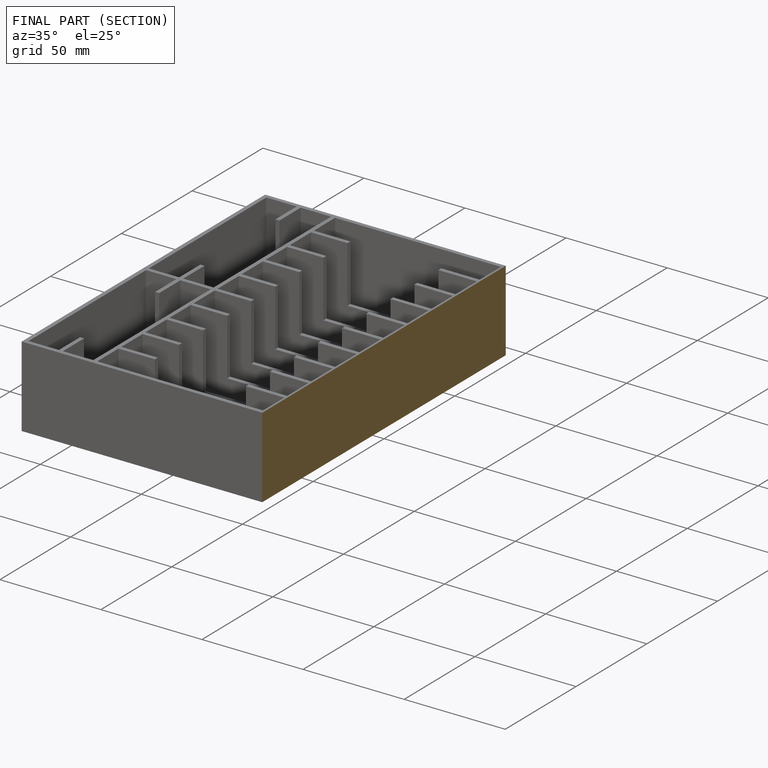
[diagram: finished part — half-section view (interior)]
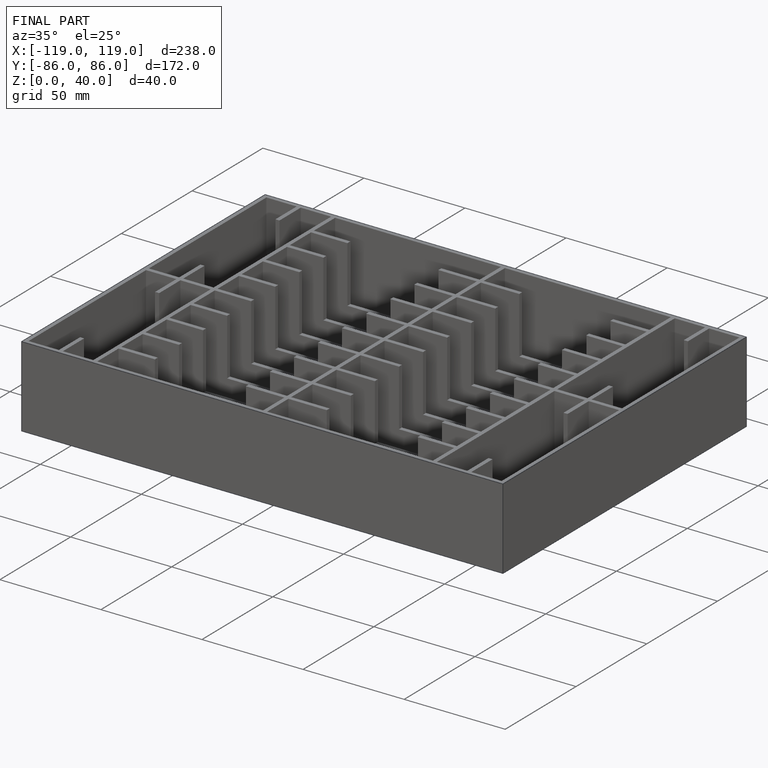
[diagram: finished part — iso view with bounding-box wireframe]
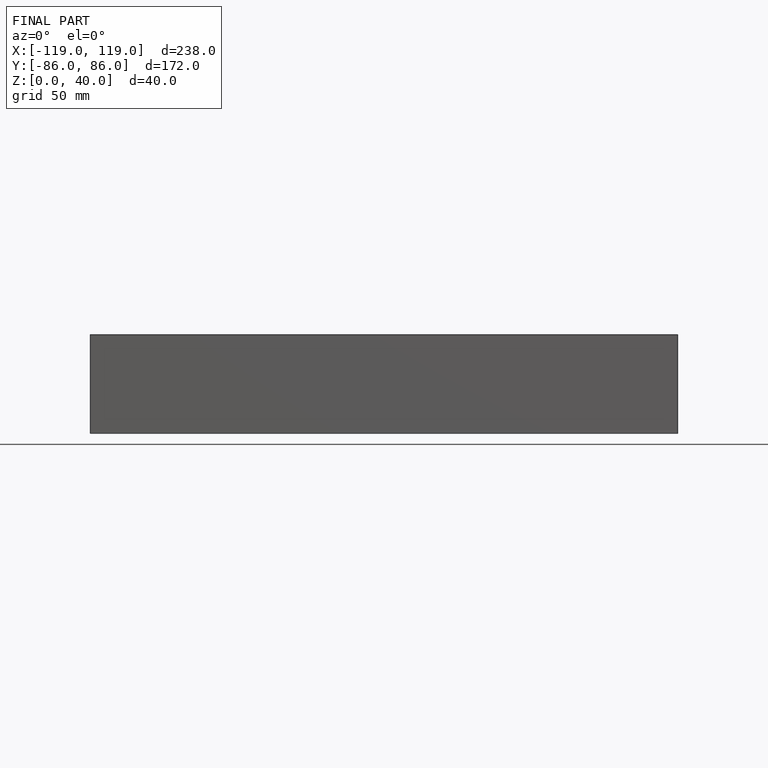
[diagram: finished part — front view with bounding-box wireframe]
